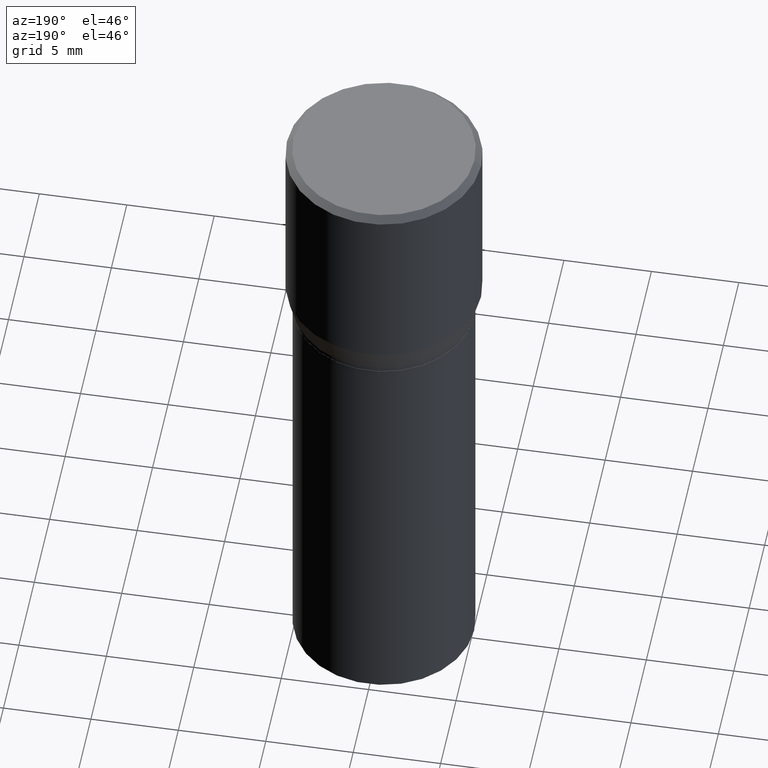
[diagram: clean part render]
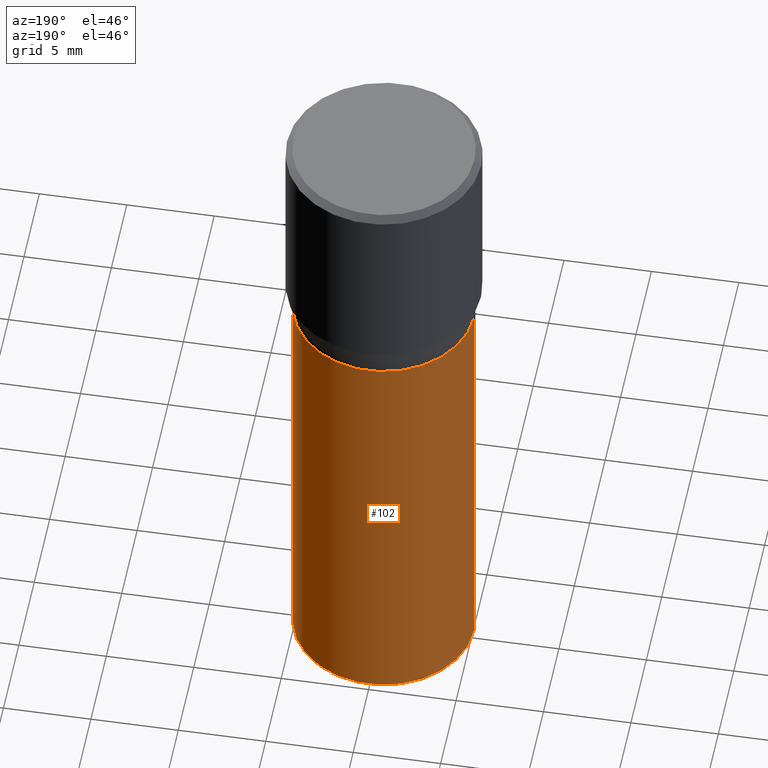
[diagram: same view with one face highlighted and labeled with its STEP entity id]
A machine part, auxiliary view. The second image highlights one B-rep face of the part: STEP entity #102.
In plain terms, the highlighted cylindrical surface (partial cylindrical patch) has radius 5.1587 mm, axis along (-0, 0, 1).
Its self-contained STEP definition (entity closure, byte-faithful):
#22 = AXIS2_PLACEMENT_3D ( 'NONE', #69, #181, #142 ) ;
#25 = ORIENTED_EDGE ( 'NONE', *, *, #329, .F. ) ;
#42 = CARTESIAN_POINT ( 'NONE',  ( 0.2031000000000000028, -6.655461728102798952E-15, -1.500000000000000222 ) ) ;
#58 = ORIENTED_EDGE ( 'NONE', *, *, #236, .T. ) ;
#63 = CARTESIAN_POINT ( 'NONE',  ( 1.222734403092568719E-29, -1.745740669421573186E-15, -0.5000000000000001110 ) ) ;
#69 = CARTESIAN_POINT ( 'NONE',  ( 0.000000000000000000, 0.000000000000000000, 0.000000000000000000 ) ) ;
#80 = AXIS2_PLACEMENT_3D ( 'NONE', #63, #387, #215 ) ;
#86 = CARTESIAN_POINT ( 'NONE',  ( -0.2031000000000000028, -2.048369042514382480E-15, -1.500000000000000222 ) ) ;
#102 = ADVANCED_FACE ( 'NONE', ( #287 ), #384, .T. ) ;
#115 = VECTOR ( 'NONE', #286, 39.37007874015748143 ) ;
#126 = CARTESIAN_POINT ( 'NONE',  ( -0.2031000000000000028, 1.443112296328763497E-15, -9.990357168307714203E-30 ) ) ;
#142 = DIRECTION ( 'NONE',  ( 1.000000000000000000, -6.982962677686266711E-15, 4.876176775795935793E-29 ) ) ;
#145 = EDGE_CURVE ( 'NONE', #378, #237, #192, .T. ) ;
#176 = DIRECTION ( 'NONE',  ( 1.000000000000000000, -6.982962677686264344E-15, 0.000000000000000000 ) ) ;
#181 = DIRECTION ( 'NONE',  ( -2.445468806185136597E-29, 3.491481338843145583E-15, 1.000000000000000000 ) ) ;
#191 = CARTESIAN_POINT ( 'NONE',  ( 0.2031000000000000028, -1.418239719838080775E-15, 9.903515031641546145E-30 ) ) ;
#192 = CIRCLE ( 'NONE', #80, 0.2031000000000000028 ) ;
#200 = CIRCLE ( 'NONE', #312, 0.2031000000000000028 ) ;
#204 = EDGE_CURVE ( 'NONE', #325, #307, #200, .T. ) ;
#215 = DIRECTION ( 'NONE',  ( 1.000000000000000000, -6.982962677686265922E-15, 0.000000000000000000 ) ) ;
#218 = CARTESIAN_POINT ( 'NONE',  ( 3.668203209277704895E-29, -5.237222008264718177E-15, -1.500000000000000222 ) ) ;
#225 = VECTOR ( 'NONE', #333, 39.37007874015748143 ) ;
#228 = LINE ( 'NONE', #191, #225 ) ;
#236 = EDGE_CURVE ( 'NONE', #307, #237, #420, .T. ) ;
#237 = VERTEX_POINT ( 'NONE', #423 ) ;
#256 = ORIENTED_EDGE ( 'NONE', *, *, #204, .T. ) ;
#258 = ORIENTED_EDGE ( 'NONE', *, *, #145, .F. ) ;
#286 = DIRECTION ( 'NONE',  ( -2.445468806185136877E-29, 3.491481338843145188E-15, 1.000000000000000000 ) ) ;
#287 = FACE_OUTER_BOUND ( 'NONE', #360, .T. ) ;
#307 = VERTEX_POINT ( 'NONE', #86 ) ;
#312 = AXIS2_PLACEMENT_3D ( 'NONE', #218, #318, #176 ) ;
#318 = DIRECTION ( 'NONE',  ( -2.445468806185136597E-29, 3.491481338843145583E-15, 1.000000000000000000 ) ) ;
#325 = VERTEX_POINT ( 'NONE', #42 ) ;
#329 = EDGE_CURVE ( 'NONE', #325, #378, #228, .T. ) ;
#333 = DIRECTION ( 'NONE',  ( -2.445468806185136877E-29, 3.491481338843145188E-15, 1.000000000000000000 ) ) ;
#347 = CARTESIAN_POINT ( 'NONE',  ( 0.2031000000000000028, -3.163980389259653764E-15, -0.5000000000000001110 ) ) ;
#360 = EDGE_LOOP ( 'NONE', ( #256, #58, #258, #25 ) ) ;
#378 = VERTEX_POINT ( 'NONE', #347 ) ;
#384 = CYLINDRICAL_SURFACE ( 'NONE', #22, 0.2031000000000000028 ) ;
#387 = DIRECTION ( 'NONE',  ( -2.445468806185136597E-29, 3.491481338843145583E-15, 1.000000000000000000 ) ) ;
#420 = LINE ( 'NONE', #126, #115 ) ;
#423 = CARTESIAN_POINT ( 'NONE',  ( -0.2031000000000000028, -2.048369042514382480E-15, -0.5000000000000001110 ) ) ;